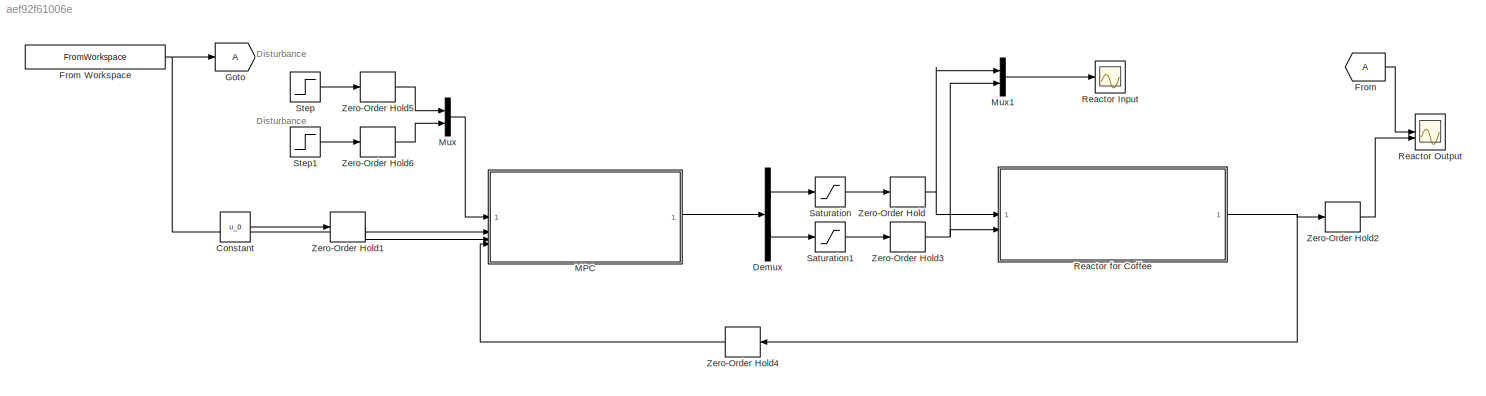
MODEL slx_aef92f61006e
KIND model
CONFIG AbsTol = auto
CONFIG EnableMultiTasking = off
CONFIG FixedStep = simulationParameters.Tint
CONFIG MaxStep = auto
CONFIG MinStep = auto
CONFIG RelTol = 1e-3
CONFIG SampleTimeConstraint = Unconstrained
CONFIG SolverName = ode4
CONFIG StartTime = 0.0
CONFIG StopTime = simulationParameters.Tsim
BLOCK [Constant] Constant
  Value = u_0
BLOCK [Demux] Demux
  Outputs = 2
BLOCK [From] From
BLOCK [FromWorkspace] From Workspace
  OutputAfterFinalValue = Holding final value
  VariableName = simulationParameters.y_target
BLOCK [Goto] Goto
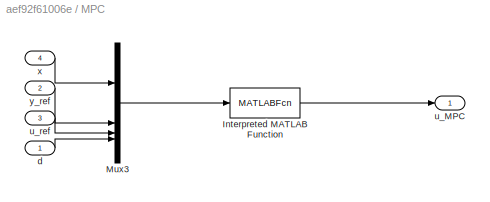
BLOCK [SubSystem] MPC
BLOCK [MATLABFcn] MPC/Interpreted MATLAB Function
  MATLABFcn = compute_MPC_control(u(1:n),u(n+1:n+p),u(n+p+1:n+p+m_input),u(n+p+m_input+1:end),condensedMatrices,m_input,PH)
  OutputDimensions = m_input
BLOCK [Mux] MPC/Mux3
  DisplayOption = bar
BLOCK [Inport] MPC/d
BLOCK [Outport] MPC/u_MPC
BLOCK [Inport] MPC/u_ref
  Port = 3
BLOCK [Inport] MPC/x
  Port = 4
BLOCK [Inport] MPC/y_ref
  Port = 2
BLOCK [Mux] Mux
  DisplayOption = bar
  Inputs = 2
BLOCK [Mux] Mux1
  DisplayOption = bar
  Inputs = 2
BLOCK [Scope] Reactor Input
  Floating = off
  NumInputPorts = 1
  ScopeSpecificationString = Simulink.scopes.TimeScopeBlockCfg('CurrentConfiguration', extmgr.ConfigurationSet(extmgr.Configuration('Core','General UI',true),extmgr.Configuration('Core','Source UI',true),extmgr.Configuration('Sources','WiredSimulink',true,'DataLoggingVariableName','reactorInput','DataLogging',true,'DataLoggingSaveFormat','StructureWithTime'),extmgr.Configuration('Visuals','Time Domain',true,'SerializedDisplay...<+1471ch>
BLOCK [Scope] Reactor Output
  Floating = off
  NumInputPorts = 2
  ScopeSpecificationString = Simulink.scopes.TimeScopeBlockCfg('CurrentConfiguration', extmgr.ConfigurationSet(extmgr.Configuration('Core','General UI',true),extmgr.Configuration('Core','Source UI',true),extmgr.Configuration('Sources','WiredSimulink',true,'DataLogging',true,'DataLoggingVariableName','reactorOutput','DataLoggingSaveFormat','StructureWithTime'),extmgr.Configuration('Visuals','Time Domain',true,'SerializedDispla...<+1504ch>
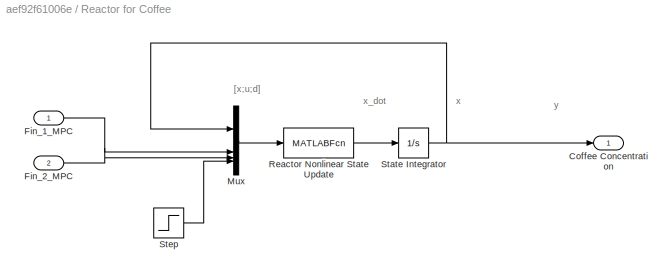
BLOCK [SubSystem] Reactor for Coffee
BLOCK [Outport] Reactor for Coffee/Coffee Concentration
BLOCK [Inport] Reactor for Coffee/Fin_1_MPC
BLOCK [Inport] Reactor for Coffee/Fin_2_MPC
  Port = 2
BLOCK [Mux] Reactor for Coffee/Mux
  DisplayOption = bar
BLOCK [MATLABFcn] Reactor for Coffee/Reactor Nonlinear State Update
  MATLABFcn = ReactorModel_StateUpdate(u(1),u(2:3),u(4),simulationParameters.Reactor_parameters)
  OutputDimensions = simulationParameters.Reactor_parameters.n
BLOCK [Integrator] Reactor for Coffee/State Integrator
  InitialCondition = simulationParameters.Reactor_parameters.x_0
BLOCK [Step] Reactor for Coffee/Step
  After = simulationParameters.Reactor_parameters.Adist
  SampleTime = 0
  Time = simulationParameters.Reactor_parameters.Tdist
BLOCK [Saturate] Saturation
  LowerLimit = simulationParameters.Fin1_min
  UpperLimit = simulationParameters.Fin1_max
BLOCK [Saturate] Saturation1
  LowerLimit = simulationParameters.Fin2_min
  UpperLimit = simulationParameters.Fin2_max
BLOCK [Step] Step
  After = simulationParameters.Reactor_parameters.Adist
  SampleTime = simulationParameters.Ts
  Time = simulationParameters.Reactor_parameters.Tdist
BLOCK [Step] Step1
  After = simulationParameters.Reactor_parameters.Adist
  SampleTime = simulationParameters.Ts
  Time = simulationParameters.Reactor_parameters.Tdist
BLOCK [ZeroOrderHold] Zero-Order Hold
  SampleTime = simulationParameters.Ts
BLOCK [ZeroOrderHold] Zero-Order Hold1
  SampleTime = simulationParameters.Ts
BLOCK [ZeroOrderHold] Zero-Order Hold2
  SampleTime = simulationParameters.Ts
BLOCK [ZeroOrderHold] Zero-Order Hold3
  SampleTime = simulationParameters.Ts
BLOCK [ZeroOrderHold] Zero-Order Hold4
  NameLocation = top
  SampleTime = simulationParameters.Ts
BLOCK [ZeroOrderHold] Zero-Order Hold5
  SampleTime = simulationParameters.Ts
BLOCK [ZeroOrderHold] Zero-Order Hold6
  SampleTime = simulationParameters.Ts
ANNOTATION (root): Disturbance
ANNOTATION Reactor for Coffee: [x;u;d]
ANNOTATION Reactor for Coffee: x
ANNOTATION Reactor for Coffee: x_dot
ANNOTATION Reactor for Coffee: y
LINE Constant:1 -> Zero-Order Hold1:1
LINE Demux:1 -> Saturation:1
LINE Demux:2 -> Saturation1:1
NET From Workspace:1 -> Goto:1, MPC:2
LINE From:1 -> Reactor Output:1
LINE MPC/Interpreted MATLAB Function:1 -> MPC/u_MPC:1
LINE MPC/Mux3:1 -> MPC/Interpreted MATLAB Function:1
LINE MPC/d:1 -> MPC/Mux3:4
LINE MPC/u_ref:1 -> MPC/Mux3:3
LINE MPC/x:1 -> MPC/Mux3:1
LINE MPC/y_ref:1 -> MPC/Mux3:2
LINE MPC:1 -> Demux:1
LINE Mux1:1 -> Reactor Input:1
LINE Mux:1 -> MPC:1
LINE Reactor for Coffee/Fin_1_MPC:1 -> Reactor for Coffee/Mux:2
LINE Reactor for Coffee/Fin_2_MPC:1 -> Reactor for Coffee/Mux:3
LINE Reactor for Coffee/Mux:1 -> Reactor for Coffee/Reactor Nonlinear State Update:1
LINE Reactor for Coffee/Reactor Nonlinear State Update:1 -> Reactor for Coffee/State Integrator:1
NET Reactor for Coffee/State Integrator:1 -> Reactor for Coffee/Coffee Concentration:1, Reactor for Coffee/Mux:1
LINE Reactor for Coffee/Step:1 -> Reactor for Coffee/Mux:4
NET Reactor for Coffee:1 -> Zero-Order Hold2:1, Zero-Order Hold4:1
LINE Saturation1:1 -> Zero-Order Hold3:1
LINE Saturation:1 -> Zero-Order Hold:1
LINE Step1:1 -> Zero-Order Hold6:1
LINE Step:1 -> Zero-Order Hold5:1
LINE Zero-Order Hold1:1 -> MPC:3
LINE Zero-Order Hold2:1 -> Reactor Output:2
NET Zero-Order Hold3:1 -> Mux1:2, Reactor for Coffee:2
LINE Zero-Order Hold4:1 -> MPC:4
LINE Zero-Order Hold5:1 -> Mux:1
LINE Zero-Order Hold6:1 -> Mux:2
NET Zero-Order Hold:1 -> Mux1:1, Reactor for Coffee:1
note: NET lines group one-source signal fan-out (src -> all destinations, sorted); 1:1 wires keep LINE
